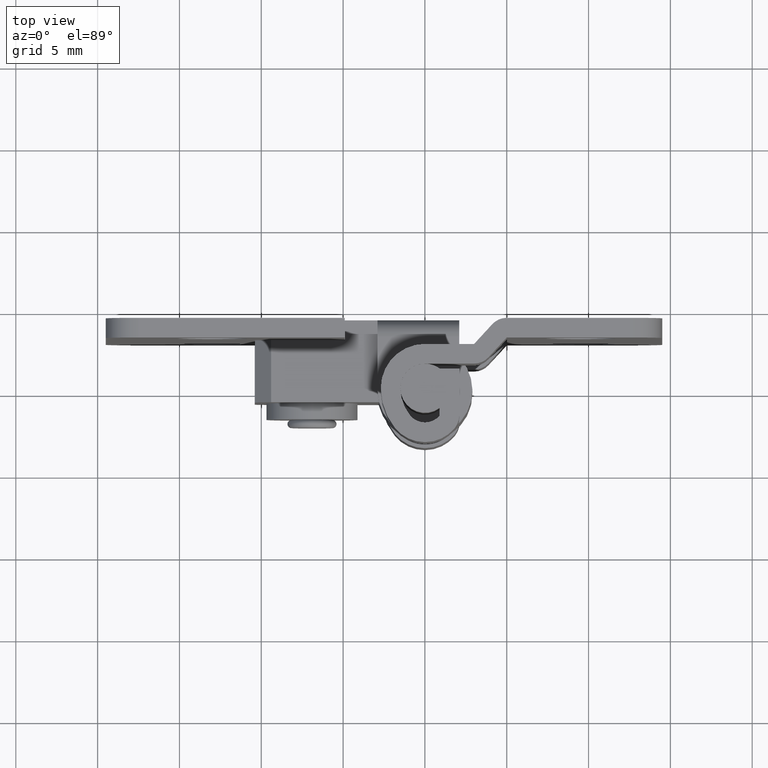
[diagram: clean part render]
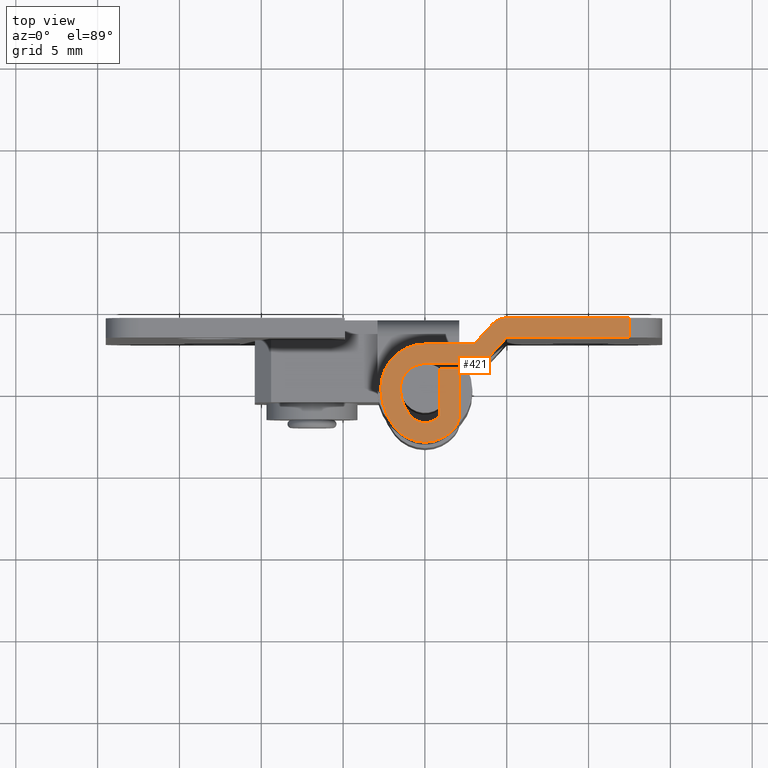
[diagram: same view with one face highlighted and labeled with its STEP entity id]
A machine part, top view. The second image highlights one B-rep face of the part: STEP entity #421.
In plain terms, the highlighted planar face has unit normal (0, 0, 1).
Its self-contained STEP definition (entity closure, byte-faithful):
#421=ADVANCED_FACE('',(#1278),#1277,.T.);
#1277=PLANE('',#2368);
#1278=FACE_OUTER_BOUND('',#2369,.T.);
#2365=CARTESIAN_POINT('',(-4.22000000000E+00,-5.55731772812E+00,2.80000000000E+01));
#2366=DIRECTION('',(0.00000000000E+00,0.00000000000E+00,1.00000000000E+00));
#2367=DIRECTION('',(1.00000000000E+00,0.00000000000E+00,0.00000000000E+00));
#2368=AXIS2_PLACEMENT_3D('',#2365,#2366,#2367);
#2369=EDGE_LOOP('',(#3124,#3125,#3126,#3127,#3128,#3129,#3130,#3131,#3132,#3133,#3134,#3135,#3136,#3137,#3138,#3139,#3140,#3141,#3142));
#3124=ORIENTED_EDGE('',*,*,#3636,.T.);
#3125=ORIENTED_EDGE('',*,*,#3693,.T.);
#3126=ORIENTED_EDGE('',*,*,#3696,.T.);
#3127=ORIENTED_EDGE('',*,*,#3697,.F.);
#3128=ORIENTED_EDGE('',*,*,#3698,.T.);
#3129=ORIENTED_EDGE('',*,*,#3699,.T.);
#3130=ORIENTED_EDGE('',*,*,#3700,.F.);
#3131=ORIENTED_EDGE('',*,*,#3701,.F.);
#3132=ORIENTED_EDGE('',*,*,#3702,.F.);
#3133=ORIENTED_EDGE('',*,*,#3703,.F.);
#3134=ORIENTED_EDGE('',*,*,#3704,.T.);
#3135=ORIENTED_EDGE('',*,*,#3705,.T.);
#3136=ORIENTED_EDGE('',*,*,#3706,.T.);
#3137=ORIENTED_EDGE('',*,*,#3707,.T.);
#3138=ORIENTED_EDGE('',*,*,#3708,.T.);
#3139=ORIENTED_EDGE('',*,*,#3709,.T.);
#3140=ORIENTED_EDGE('',*,*,#3710,.T.);
#3141=ORIENTED_EDGE('',*,*,#3711,.F.);
#3142=ORIENTED_EDGE('',*,*,#3648,.T.);
#3636=EDGE_CURVE('',#5152,#5145,#5153,.T.);
#3648=EDGE_CURVE('',#5235,#5152,#5236,.T.);
#3693=EDGE_CURVE('',#5145,#5536,#5543,.T.);
#3696=EDGE_CURVE('',#5536,#5562,#5563,.T.);
#3697=EDGE_CURVE('',#5569,#5562,#5570,.T.);
#3698=EDGE_CURVE('',#5569,#5576,#5577,.T.);
#3699=EDGE_CURVE('',#5576,#5583,#5584,.T.);
#3700=EDGE_CURVE('',#5590,#5583,#5591,.T.);
#3701=EDGE_CURVE('',#5597,#5590,#5598,.T.);
#3702=EDGE_CURVE('',#5604,#5597,#5605,.T.);
#3703=EDGE_CURVE('',#5611,#5604,#5612,.T.);
#3704=EDGE_CURVE('',#5611,#5618,#5619,.T.);
#3705=EDGE_CURVE('',#5618,#5625,#5626,.T.);
#3706=EDGE_CURVE('',#5625,#5632,#5633,.T.);
#3707=EDGE_CURVE('',#5632,#5639,#5640,.T.);
#3708=EDGE_CURVE('',#5639,#5646,#5647,.T.);
#3709=EDGE_CURVE('',#5646,#5653,#5654,.T.);
#3710=EDGE_CURVE('',#5653,#5660,#5661,.T.);
#3711=EDGE_CURVE('',#5235,#5660,#5667,.T.);
#5145=VERTEX_POINT('',#7238);
#5152=VERTEX_POINT('',#7243);
#5153=LINE('',#7244,#7245);
#5235=VERTEX_POINT('',#7296);
#5236=LINE('',#7297,#7298);
#5536=VERTEX_POINT('',#7529);
#5543=LINE('',#7534,#7535);
#5562=VERTEX_POINT('',#7545);
#5563=LINE('',#7546,#7547);
#5569=VERTEX_POINT('',#7549);
#5570=CIRCLE('',#7553,1.20000000000E+00);
#5576=VERTEX_POINT('',#7554);
#5577=LINE('',#7555,#7556);
#5583=VERTEX_POINT('',#7558);
#5584=LINE('',#7559,#7560);
#5590=VERTEX_POINT('',#7562);
#5591=CIRCLE('',#7566,2.70000000000E+00);
#5597=VERTEX_POINT('',#7567);
#5598=CIRCLE('',#7571,3.84042200000E+00);
#5604=VERTEX_POINT('',#7572);
#5605=CIRCLE('',#7576,2.36692697844E+00);
#5611=VERTEX_POINT('',#7577);
#5612=CIRCLE('',#7581,1.19999894435E+00);
#5618=VERTEX_POINT('',#7582);
#5619=LINE('',#7583,#7584);
#5625=VERTEX_POINT('',#7586);
#5626=LINE('',#7587,#7588);
#5632=VERTEX_POINT('',#7590);
#5633=LINE('',#7591,#7592);
#5639=VERTEX_POINT('',#7594);
#5640=CIRCLE('',#7598,1.16692731331E+00);
#5646=VERTEX_POINT('',#7599);
#5647=CIRCLE('',#7603,2.64042207345E+00);
#5653=VERTEX_POINT('',#7604);
#5654=CIRCLE('',#7608,1.50000000000E+00);
#5660=VERTEX_POINT('',#7609);
#5661=LINE('',#7610,#7611);
#5667=CIRCLE('',#7616,1.20000000000E+00);
#7238=CARTESIAN_POINT('',(1.25000000000E+01,3.10000000000E+00,2.80000000000E+01));
#7243=CARTESIAN_POINT('',(5.00000000000E+00,3.10000000000E+00,2.80000000000E+01));
#7244=CARTESIAN_POINT('',(5.00000000000E+00,3.10000000000E+00,2.80000000000E+01));
#7245=VECTOR('',#7246,7.50000000000E+00);
#7246=DIRECTION('',(1.00000000000E+00,0.00000000000E+00,0.00000000000E+00));
#7296=CARTESIAN_POINT('',(3.88661625490E+00,1.88813697055E+00,2.80000000000E+01));
#7297=CARTESIAN_POINT('',(3.88661625490E+00,1.88813697055E+00,2.80000000000E+01));
#7298=VECTOR('',#7299,1.64567170663E+00);
#7299=DIRECTION('',(6.76552766034E-01,7.36394157209E-01,0.00000000000E+00));
#7529=CARTESIAN_POINT('',(1.25000000000E+01,4.30000000000E+00,2.80000000000E+01));
#7534=CARTESIAN_POINT('',(1.25000000000E+01,3.10000000000E+00,2.80000000000E+01));
#7535=VECTOR('',#7536,1.20000000000E+00);
#7536=DIRECTION('',(0.00000000000E+00,1.00000000000E+00,0.00000000000E+00));
#7545=CARTESIAN_POINT('',(5.00000000000E+00,4.30000000000E+00,2.80000000000E+01));
#7546=CARTESIAN_POINT('',(1.25000000000E+01,4.30000000000E+00,2.80000000000E+01));
#7547=VECTOR('',#7548,7.50000000000E+00);
#7548=DIRECTION('',(-1.00000000000E+00,0.00000000000E+00,0.00000000000E+00));
#7549=CARTESIAN_POINT('',(4.11632674510E+00,3.91186302945E+00,2.80000000000E+01));
#7550=CARTESIAN_POINT('',(5.00000000000E+00,3.10000000000E+00,2.80000000000E+01));
#7551=DIRECTION('',(-1.71333053638E-14,2.94872483173E-14,-1.00000000000E+00));
#7552=DIRECTION('',(7.36394379080E-01,-6.76552524539E-01,-3.25665420557E-14));
#7553=AXIS2_PLACEMENT_3D('',#7550,#7551,#7552);
#7554=CARTESIAN_POINT('',(3.00294300000E+00,2.70000000000E+00,2.80000000000E+01));
#7555=CARTESIAN_POINT('',(4.11632674510E+00,3.91186302945E+00,2.80000000000E+01));
#7556=VECTOR('',#7557,1.64567170663E+00);
#7557=DIRECTION('',(-6.76552766034E-01,-7.36394157209E-01,0.00000000000E+00));
#7558=CARTESIAN_POINT('',(0.00000000000E+00,2.70000000000E+00,2.80000000000E+01));
#7559=CARTESIAN_POINT('',(3.00294300000E+00,2.70000000000E+00,2.80000000000E+01));
#7560=VECTOR('',#7561,3.00294300000E+00);
#7561=DIRECTION('',(-1.00000000000E+00,0.00000000000E+00,0.00000000000E+00));
#7562=CARTESIAN_POINT('',(-2.70000000000E+00,-3.30643700000E-16,2.80000000000E+01));
#7563=CARTESIAN_POINT('',(-2.44249065418E-15,2.44249065418E-15,2.80000000000E+01));
#7564=DIRECTION('',(1.68337389587E-30,-1.86085032140E-15,-1.00000000000E+00));
#7565=DIRECTION('',(1.00000000000E+00,9.04626168213E-16,-0.00000000000E+00));
#7566=AXIS2_PLACEMENT_3D('',#7563,#7564,#7565);
#7567=CARTESIAN_POINT('',(-1.83190063308E+00,-2.43190034807E+00,2.80000000000E+01));
#7568=CARTESIAN_POINT('',(1.14042200000E+00,-3.77475828373E-15,2.80000000000E+01));
#7569=DIRECTION('',(-1.31980907124E-14,-7.24307438702E-15,-1.00000000000E+00));
#7570=DIRECTION('',(7.73957297684E-01,6.33237792115E-01,-1.48013470553E-14));
#7571=AXIS2_PLACEMENT_3D('',#7568,#7569,#7570);
#7572=CARTESIAN_POINT('',(1.82550749409E+00,-2.43968038494E+00,2.80000000000E+01));
#7573=CARTESIAN_POINT('',(1.01408735797E-08,-9.33073021577E-01,2.80000000000E+01));
#7574=DIRECTION('',(8.38533797247E-16,1.01602432037E-15,-1.00000000000E+00));
#7575=DIRECTION('',(-7.71256359227E-01,6.36524648661E-01,-0.00000000000E+00));
#7576=AXIS2_PLACEMENT_3D('',#7573,#7574,#7575);
#7577=CARTESIAN_POINT('',(2.10000000000E+00,-1.67585100000E+00,2.80000000000E+01));
#7578=CARTESIAN_POINT('',(9.00001055648E-01,-1.67585101993E+00,2.80000000000E+01));
#7579=DIRECTION('',(4.73695575886E-14,-1.20371084863E-14,-1.00000000000E+00));
#7580=DIRECTION('',(-1.00000000000E+00,-1.66087143967E-08,-4.73695573887E-14));
#7581=AXIS2_PLACEMENT_3D('',#7578,#7579,#7580);
#7582=CARTESIAN_POINT('',(2.10000000000E+00,1.20000000000E+00,2.80000000000E+01));
#7583=CARTESIAN_POINT('',(2.10000000000E+00,-1.67585100000E+00,2.80000000000E+01));
#7584=VECTOR('',#7585,2.87585100000E+00);
#7585=DIRECTION('',(0.00000000000E+00,1.00000000000E+00,0.00000000000E+00));
#7586=CARTESIAN_POINT('',(9.00000000000E-01,1.20000000000E+00,2.80000000000E+01));
#7587=CARTESIAN_POINT('',(2.10000000000E+00,1.20000000000E+00,2.80000000000E+01));
#7588=VECTOR('',#7589,1.20000000000E+00);
#7589=DIRECTION('',(-1.00000000000E+00,0.00000000000E+00,0.00000000000E+00));
#7590=CARTESIAN_POINT('',(9.00000000000E-01,-1.67585100000E+00,2.80000000000E+01));
#7591=CARTESIAN_POINT('',(9.00000000000E-01,1.20000000000E+00,2.80000000000E+01));
#7592=VECTOR('',#7593,2.87585100000E+00);
#7593=DIRECTION('',(0.00000000000E+00,-1.00000000000E+00,0.00000000000E+00));
#7594=CARTESIAN_POINT('',(-9.03151667514E-01,-1.67201527704E+00,2.80000000000E+01));
#7595=CARTESIAN_POINT('',(1.48727401640E-07,-9.33072687010E-01,2.80000000000E+01));
#7596=DIRECTION('',(-6.23639203811E-15,-7.55642943341E-15,-1.00000000000E+00));
#7597=DIRECTION('',(-7.71256136531E-01,6.36524918494E-01,-0.00000000000E+00));
#7598=AXIS2_PLACEMENT_3D('',#7595,#7596,#7597);
#7599=CARTESIAN_POINT('',(-1.50000000000E+00,-3.23347800000E-16,2.80000000000E+01));
#7600=CARTESIAN_POINT('',(1.14042207345E+00,1.36261346650E-09,2.80000000000E+01));
#7601=DIRECTION('',(-1.76122682375E-14,-1.24708489456E-14,-1.00000000000E+00));
#7602=DIRECTION('',(7.73957225064E-01,6.33237880872E-01,-2.15281562112E-14));
#7603=AXIS2_PLACEMENT_3D('',#7600,#7601,#7602);
#7604=CARTESIAN_POINT('',(-2.75536400000E-16,1.50000000000E+00,2.80000000000E+01));
#7605=CARTESIAN_POINT('',(-1.22124532709E-15,1.22124532709E-15,2.80000000000E+01));
#7606=DIRECTION('',(2.72706571131E-30,-3.34953057853E-15,-1.00000000000E+00));
#7607=DIRECTION('',(1.00000000000E+00,8.14163551392E-16,-0.00000000000E+00));
#7608=AXIS2_PLACEMENT_3D('',#7605,#7606,#7607);
#7609=CARTESIAN_POINT('',(3.00294300000E+00,1.50000000000E+00,2.80000000000E+01));
#7610=CARTESIAN_POINT('',(-2.75536400000E-16,1.50000000000E+00,2.80000000000E+01));
#7611=VECTOR('',#7612,3.00294300000E+00);
#7612=DIRECTION('',(1.00000000000E+00,0.00000000000E+00,0.00000000000E+00));
#7613=CARTESIAN_POINT('',(3.00294300000E+00,2.70000000000E+00,2.80000000000E+01));
#7614=DIRECTION('',(2.14914500969E-14,-2.47436206338E-14,-1.00000000000E+00));
#7615=DIRECTION('',(-7.36394379080E-01,6.76552524539E-01,-3.25665420557E-14));
#7616=AXIS2_PLACEMENT_3D('',#7613,#7614,#7615);